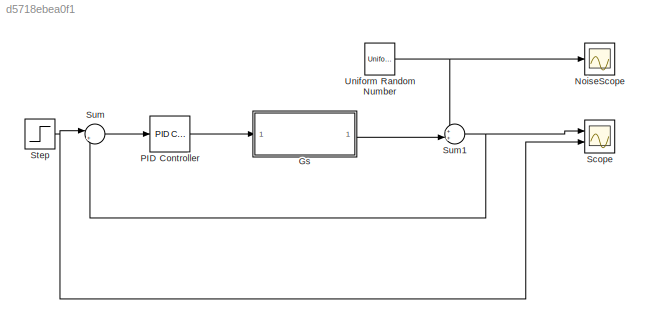
MODEL slx_d5718ebea0f1
KIND model
CONFIG AbsTol = auto
CONFIG FixedStep = auto
CONFIG MaxStep = auto
CONFIG MinStep = auto
CONFIG RelTol = 1e-3
CONFIG SampleTimeConstraint = Unconstrained
CONFIG Solver = VariableStepAuto
CONFIG SolverMode = Auto
CONFIG SolverName = VariableStepAuto
CONFIG StartTime = 0.0
CONFIG StopTime = 50
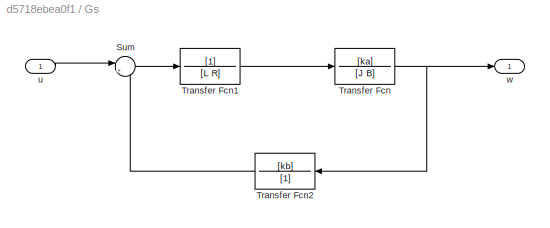
BLOCK [SubSystem] Gs
  Ports = [1, 1]
  RequestExecContextInheritance = off
  Variant = off
BLOCK [Sum] Gs/Sum
  IconShape = round
  InputSameDT = off
  Inputs = |+-
  OutDataTypeStr = Inherit: Inherit via internal rule
  Ports = [2, 1]
  SaturateOnIntegerOverflow = off
BLOCK [TransferFcn] Gs/Transfer Fcn
  Denominator = [J B]
  Numerator = [ka]
BLOCK [TransferFcn] Gs/Transfer Fcn1
  Denominator = [L R]
BLOCK [TransferFcn] Gs/Transfer Fcn2
  Denominator = [1]
  Numerator = [kb]
BLOCK [Inport] Gs/u
  IconDisplay = Port number
BLOCK [Outport] Gs/w
  IconDisplay = Port number
BLOCK [Scope] NoiseScope
  Ports = [1]
  ScopeSpecificationString = Simulink.scopes.TimeScopeBlockCfg('CurrentConfiguration', extmgr.ConfigurationSet(extmgr.Configuration('Core','General UI',true),extmgr.Configuration('Core','Source UI',true),extmgr.Configuration('Sources','WiredSimulink',true,'DataLoggingVariableName','ScopeData1'),extmgr.Configuration('Visuals','Time Domain',true,'SerializedDisplays',{struct('MinYLimReal','-0.12304','MaxYLimReal','0.12279','YLab...<+1408ch>
BLOCK [Reference] PID Controller  REF=simulink/Continuous/PID Controller
  Ports = [1, 1]
  SourceBlock = simulink/Continuous/PID Controller
  SourceType = PID 1dof
BLOCK [Scope] Scope
  NumInputPorts = 2
  Ports = [2]
  ScopeSpecificationString = Simulink.scopes.TimeScopeBlockCfg('CurrentConfiguration', extmgr.ConfigurationSet(extmgr.Configuration('Core','General UI',true),extmgr.Configuration('Core','Source UI',true),extmgr.Configuration('Sources','WiredSimulink',true),extmgr.Configuration('Visuals','Time Domain',true,'SerializedDisplays',{struct('MinYLimReal','-0.12725','MaxYLimReal','1.14526','YLabelReal','','MinYLimMag','0.00000','MaxY...<+1385ch>
BLOCK [Step] Step
  SampleTime = 0
BLOCK [Sum] Sum
  IconShape = round
  InputSameDT = off
  Inputs = |+-
  OutDataTypeStr = Inherit: Inherit via internal rule
  Ports = [2, 1]
  SaturateOnIntegerOverflow = off
BLOCK [Sum] Sum1
  IconShape = round
  InputSameDT = off
  Inputs = ++|
  OutDataTypeStr = Inherit: Inherit via internal rule
  Ports = [2, 1]
  SaturateOnIntegerOverflow = off
BLOCK [UniformRandomNumber] Uniform Random Number
  Maximum = 0.1
  Minimum = -0.1
  SampleTime = 1
LINE Gs/Sum:1 -> Gs/Transfer Fcn1:1
LINE Gs/Transfer Fcn1:1 -> Gs/Transfer Fcn:1
LINE Gs/Transfer Fcn2:1 -> Gs/Sum:2
NET Gs/Transfer Fcn:1 -> Gs/Transfer Fcn2:1, Gs/w:1
LINE Gs/u:1 -> Gs/Sum:1
LINE Gs:1 -> Sum1:2
LINE PID Controller:1 -> Gs:1
NET Step:1 -> Scope:2, Sum:1
NET Sum1:1 -> Scope:1, Sum:2
LINE Sum:1 -> PID Controller:1
NET Uniform Random Number:1 -> NoiseScope:1, Sum1:1
note: NET lines group one-source signal fan-out (src -> all destinations, sorted); 1:1 wires keep LINE
